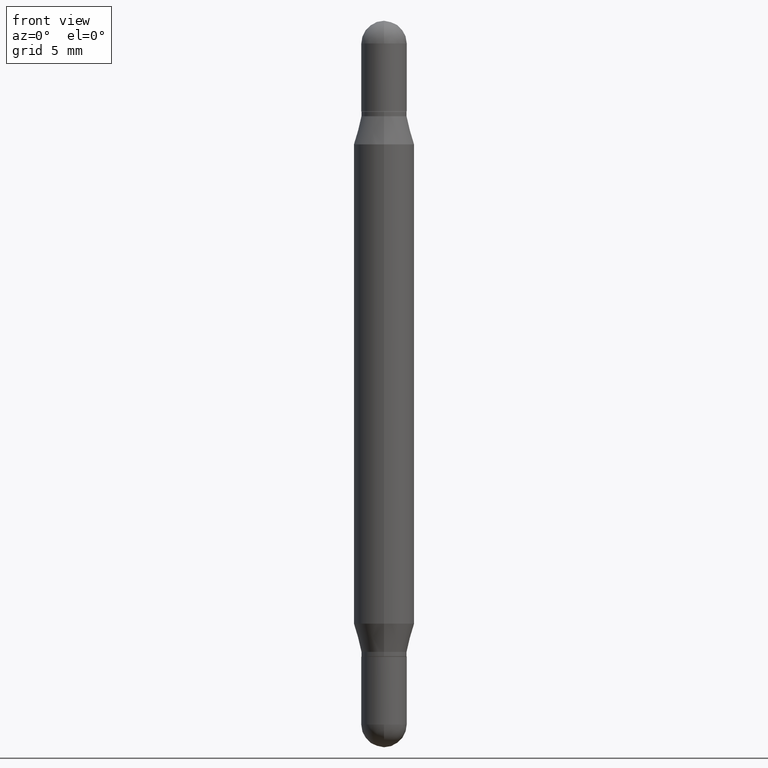
[diagram: clean part render]
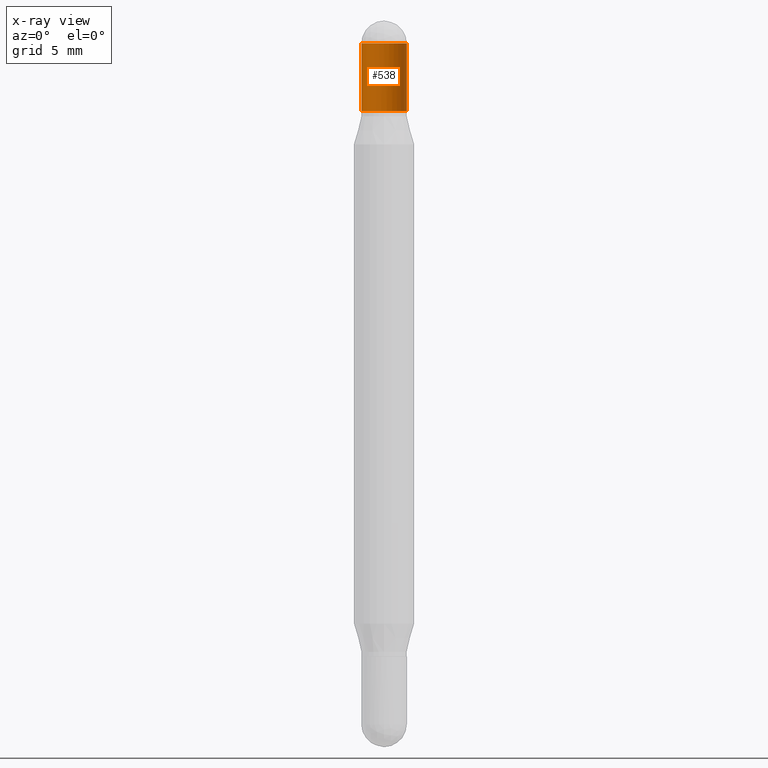
[diagram: x-ray — body ghosted, one internal face saturated and labeled with its STEP entity id]
A machine part, front view, then the same camera in x-ray: the body is ghosted and one INTERNAL B-rep face — a face not visible from any outside direction — is saturated and labeled: STEP entity #538.
In plain terms, the highlighted cylindrical surface (edge-blend (fillet) strip) has radius 1.1913 mm, axis along (-0, -0, -1).
Its self-contained STEP definition (entity closure, byte-faithful):
#73 = CARTESIAN_POINT ( 'NONE',  ( 3.553510722267622201E-29, -1.720940724002502970E-16, -0.04690000000000053154 ) ) ;
#83 = CARTESIAN_POINT ( 'NONE',  ( -0.04689999999999999725, -9.408370971656128076E-17, -0.04690000000000053154 ) ) ;
#104 = DIRECTION ( 'NONE',  ( 1.000000000000000000, -6.982962677686266711E-15, 0.000000000000000000 ) ) ;
#128 = EDGE_CURVE ( 'NONE', #537, #248, #1094, .T. ) ;
#167 = DIRECTION ( 'NONE',  ( 1.000000000000000000, -6.982962677686277755E-15, 0.000000000000000000 ) ) ;
#168 = DIRECTION ( 'NONE',  ( -2.445468806185136877E-29, -3.479614466977828648E-15, -1.000000000000000000 ) ) ;
#174 = VERTEX_POINT ( 'NONE', #434 ) ;
#244 = EDGE_CURVE ( 'NONE', #392, #248, #368, .T. ) ;
#248 = VERTEX_POINT ( 'NONE', #1048 ) ;
#286 = ORIENTED_EDGE ( 'NONE', *, *, #128, .F. ) ;
#289 = EDGE_LOOP ( 'NONE', ( #286, #881, #376, #1103, #466 ) ) ;
#298 = AXIS2_PLACEMENT_3D ( 'NONE', #1040, #707, #104 ) ;
#300 = AXIS2_PLACEMENT_3D ( 'NONE', #722, #726, #306 ) ;
#306 = DIRECTION ( 'NONE',  ( 1.000000000000000000, -6.982962677686266711E-15, 0.000000000000000000 ) ) ;
#368 = CIRCLE ( 'NONE', #298, 0.04689999999999999725 ) ;
#376 = ORIENTED_EDGE ( 'NONE', *, *, #956, .F. ) ;
#379 = CARTESIAN_POINT ( 'NONE',  ( 0.04689999999999999725, -9.870890088073285070E-16, -0.1870000000000002216 ) ) ;
#392 = VERTEX_POINT ( 'NONE', #379 ) ;
#434 = CARTESIAN_POINT ( 'NONE',  ( 3.217573560955207797E-16, 0.04689999999999990010, -0.04690000000000069114 ) ) ;
#460 = AXIS2_PLACEMENT_3D ( 'NONE', #933, #847, #167 ) ;
#466 = ORIENTED_EDGE ( 'NONE', *, *, #244, .T. ) ;
#497 = DIRECTION ( 'NONE',  ( 1.000000000000000000, -6.982962677686266711E-15, 0.000000000000000000 ) ) ;
#506 = CARTESIAN_POINT ( 'NONE',  ( 0.04689999999999999725, -5.555822803949218252E-15, -1.500000000000000444 ) ) ;
#537 = VERTEX_POINT ( 'NONE', #83 ) ;
#538 = ADVANCED_FACE ( 'NONE', ( #670 ), #596, .T. ) ;
#574 = EDGE_CURVE ( 'NONE', #592, #392, #752, .T. ) ;
#592 = VERTEX_POINT ( 'NONE', #656 ) ;
#596 = CYLINDRICAL_SURFACE ( 'NONE', #460, 0.04689999999999999725 ) ;
#648 = AXIS2_PLACEMENT_3D ( 'NONE', #73, #743, #497 ) ;
#656 = CARTESIAN_POINT ( 'NONE',  ( 0.04689999999999999725, -7.433420153955320943E-16, -0.04690000000000053154 ) ) ;
#670 = FACE_OUTER_BOUND ( 'NONE', #289, .T. ) ;
#707 = DIRECTION ( 'NONE',  ( 2.445468806185136597E-29, 3.479614466977828254E-15, 1.000000000000000000 ) ) ;
#722 = CARTESIAN_POINT ( 'NONE',  ( 3.553510722267622201E-29, -1.720940724002502970E-16, -0.04690000000000053154 ) ) ;
#723 = CIRCLE ( 'NONE', #300, 0.04689999999999999725 ) ;
#726 = DIRECTION ( 'NONE',  ( 2.445468806185136597E-29, 3.479614466977828254E-15, 1.000000000000000000 ) ) ;
#743 = DIRECTION ( 'NONE',  ( 2.445468806185136597E-29, 3.479614466977828254E-15, 1.000000000000000000 ) ) ;
#752 = LINE ( 'NONE', #506, #1085 ) ;
#825 = DIRECTION ( 'NONE',  ( -2.445468806185136877E-29, -3.479614466977828648E-15, -1.000000000000000000 ) ) ;
#847 = DIRECTION ( 'NONE',  ( -2.445468806185136597E-29, -3.479614466977828254E-15, -1.000000000000000000 ) ) ;
#855 = CARTESIAN_POINT ( 'NONE',  ( -0.04689999999999999725, -4.906564498270247118E-15, -1.500000000000000444 ) ) ;
#881 = ORIENTED_EDGE ( 'NONE', *, *, #1096, .F. ) ;
#884 = VECTOR ( 'NONE', #168, 39.37007874015748143 ) ;
#933 = CARTESIAN_POINT ( 'NONE',  ( 0.000000000000000000, -5.228321854365732350E-15, -1.500000000000000444 ) ) ;
#934 = CIRCLE ( 'NONE', #648, 0.04689999999999999725 ) ;
#956 = EDGE_CURVE ( 'NONE', #592, #174, #723, .T. ) ;
#1040 = CARTESIAN_POINT ( 'NONE',  ( 3.210900542521084585E-29, -6.595880592238425060E-16, -0.1870000000000002216 ) ) ;
#1048 = CARTESIAN_POINT ( 'NONE',  ( -0.04689999999999999725, -9.408370971656158891E-17, -0.1870000000000002216 ) ) ;
#1085 = VECTOR ( 'NONE', #825, 39.37007874015748143 ) ;
#1094 = LINE ( 'NONE', #855, #884 ) ;
#1096 = EDGE_CURVE ( 'NONE', #174, #537, #934, .T. ) ;
#1103 = ORIENTED_EDGE ( 'NONE', *, *, #574, .T. ) ;